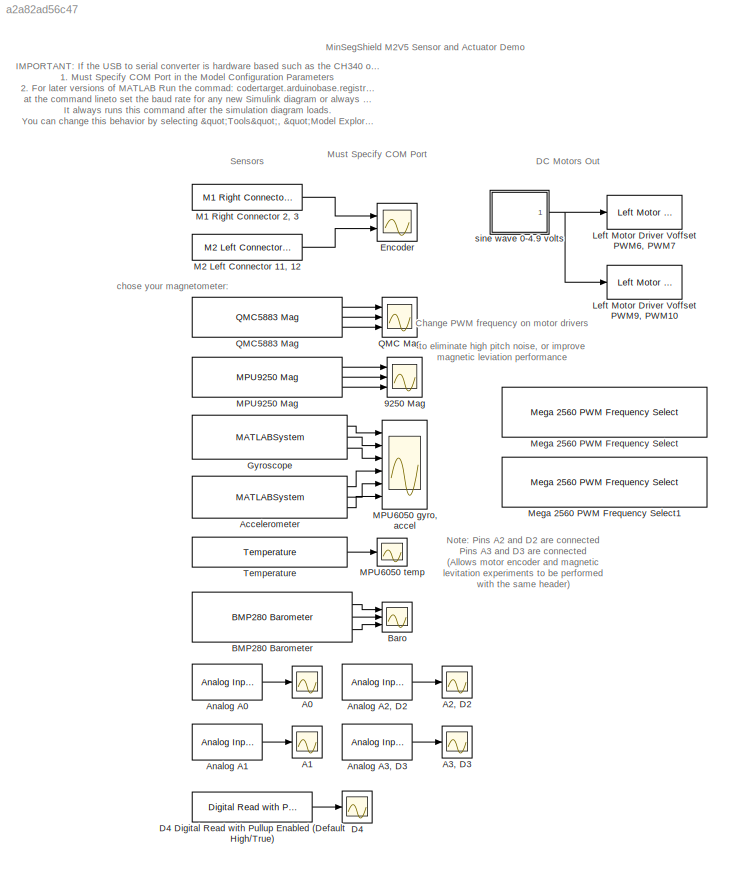
MODEL slx_a2a82ad56c47
KIND model
CONFIG AbsTol = auto
CONFIG FixedStep = auto
CONFIG MaxStep = auto
CONFIG MinStep = auto
CONFIG PostLoadFcn = try, \ncodertarget.arduinobase.registry.setBaudRate(gcs,115200)\ndisp('baud rate set to 115200 for external mode hardware serial')\nbaudrate='set_to_115200'\ncatch\ndisp('baud rate setting not needed in this version')\nend
CONFIG RelTol = 1e-3
CONFIG SampleTimeConstraint = Unconstrained
CONFIG Solver = ode45
CONFIG SolverMode = Auto
CONFIG SolverName = ode45
CONFIG StartTime = 0.0
CONFIG StopTime = 10.0
BLOCK [Scope] 9250 Mag
  DataFormat = StructureWithTime
  Floating = off
  NumInputPorts = 3
  Ports = [3]
  SampleTime = 0
  SaveName = ScopeData7
  TimeRange = 30
  YMax = 200~200~200
  YMin = -200~-200~-200
BLOCK [Scope] A0
  Floating = off
  NumInputPorts = 1
  Ports = [1]
  SaveName = ScopeData2
  TimeRange = 30
  YMax = 1100
  YMin = 0
BLOCK [Scope] A1
  Floating = off
  NumInputPorts = 1
  Ports = [1]
  SaveName = ScopeData3
BLOCK [Scope] A2, D2
  Floating = off
  NumInputPorts = 1
  Ports = [1]
  SaveName = ScopeData5
BLOCK [Scope] A3, D3
  Floating = off
  NumInputPorts = 1
  Ports = [1]
  SaveName = ScopeData4
BLOCK [MATLABSystem] Accelerometer
  MaskDisplay = disp('soMPU6050Accel');\nport_label('output',1,'xaccel');\nport_label('output',2,'yaccel');\nport_label('output',3,'zaccel');
  MaskType = soMPU6050Accel
  Ports = [0, 3]
  SimulateUsing = Code generation
  System = soMPU6050Accel
BLOCK [Reference] Analog A0  REF=arduinolib/Analog Input
  Ports = [0, 1]
  SourceBlock = arduinolib/Analog Input
  SourceType = Arduino Analog Input
  blockPlatform = arduino
  pinNumber = 0
  sampleTime = -1
BLOCK [Reference] Analog A1  REF=arduinolib/Analog Input
  Ports = [0, 1]
  SourceBlock = arduinolib/Analog Input
  SourceType = Arduino Analog Input
  blockPlatform = arduino
  pinNumber = 1
  sampleTime = -1
BLOCK [Reference] Analog A2, D2  REF=arduinolib/Analog Input
  Ports = [0, 1]
  SourceBlock = arduinolib/Analog Input
  SourceType = Arduino Analog Input
  blockPlatform = arduino
  pinNumber = 2
  sampleTime = -1
BLOCK [Reference] Analog A3, D3  REF=arduinolib/Analog Input
  Ports = [0, 1]
  SourceBlock = arduinolib/Analog Input
  SourceType = Arduino Analog Input
  blockPlatform = arduino
  pinNumber = 3
  sampleTime = -1
BLOCK [Reference] BMP280 Barometer  REF=RASPlib/BMP280 Barometer
  Commented = on
  Ports = [0, 3]
  SimulateUsing = Code generation
  SourceBlock = RASPlib/BMP280 Barometer
  SourceType = soBMP280
BLOCK [Scope] Baro
  Commented = on
  DataFormat = StructureWithTime
  Floating = off
  NumInputPorts = 3
  Ports = [3]
  SampleTime = 0
  SaveName = ScopeData6
  TimeRange = 10
  YMax = 100685~55.25~28.55
  YMin = 100663~53.25~28.42
BLOCK [Scope] D4
  Floating = off
  NumInputPorts = 1
  Ports = [1]
  SaveName = ScopeData10
  TimeRange = 30
BLOCK [Reference] D4 Digital Read with Pullup Enabled (Default High//True)  REF=RASPlib/Digital Read with Pullup Enabled
  Pin = 4
  Ports = [0, 1]
  SourceBlock = RASPlib/Digital Read with Pullup Enabled
  SourceType = soDigitalPullupRead
BLOCK [Scope] Encoder
  DataFormat = StructureWithTime
  Floating = off
  NumInputPorts = 2
  Ports = [2]
  SampleTime = 0
  TimeRange = 30
  YMax = 4000~3000
  YMin = -6000~-7000
BLOCK [MATLABSystem] Gyroscope
  DLPFmode = 0
  MaskDisplay = disp('soMPU6050Gyro');\nport_label('output',1,'xvel');\nport_label('output',2,'yvel');\nport_label('output',3,'zvel');
  MaskType = soMPU6050Gyro
  Ports = [0, 3]
  System = soMPU6050Gyro
BLOCK [Reference] Left Motor Driver Voffset PWM6, PWM7  REF=MinSegLibrary_M2V5/Left Motor Driver
Voffset PWM6, PWM7
  Ports = [1]
  SourceBlock = MinSegLibrary_M2V5/Left Motor Driver\nVoffset PWM6, PWM7
  Voffset = 0
  Vsupply = 4.9
BLOCK [Reference] Left Motor Driver Voffset PWM9, PWM10  REF=MinSegLibrary_M2V5/Left Motor Driver
Voffset PWM9, PWM10
  Ports = [1]
  SourceBlock = MinSegLibrary_M2V5/Left Motor Driver\nVoffset PWM9, PWM10
  Voffset = 0
  Vsupply = 4.9
BLOCK [Reference] M1 Right Connector 2, 3  REF=MinSegLibrary_M2V5/M1 Right Connector 2, 3
  Encoder = 0
  PinA = 2
  PinB = 3
  Ports = [0, 1]
  SourceBlock = MinSegLibrary_M2V5/M1 Right Connector 2, 3
  SourceType = Encoder_arduino
BLOCK [Reference] M2 Left Connector 11, 12  REF=MinSegLibrary_M2V5/M2 Left Connector 11, 12
  Encoder = 4
  PinA = 11
  PinB = 12
  Ports = [0, 1]
  SourceBlock = MinSegLibrary_M2V5/M2 Left Connector 11, 12
  SourceType = Encoder_arduino
BLOCK [Scope] MPU6050 gyro, accel
  DataFormat = StructureWithTime
  Floating = off
  NumInputPorts = 6
  Ports = [6]
  SampleTime = 0
  SaveName = ScopeData1
  TimeRange = 30
  YMax = 40000~40000~30000~35000~20000~40000
  YMin = -40000~-40000~-40000~-20000~-35000~-30000
BLOCK [Scope] MPU6050 temp
  DataFormat = StructureWithTime
  Floating = off
  NumInputPorts = 1
  Ports = [1]
  SampleTime = 0
  SaveName = ScopeData9
  TimeRange = 30
  YMax = 0
  YMin = -3000
BLOCK [Reference] MPU9250 Mag  REF=RASPlib/MPU9250 Mag
  Ports = [0, 3]
  SimulateUsing = Code generation
  SourceBlock = RASPlib/MPU9250 Mag
  SourceType = soMPU9250Mag
BLOCK [Reference] Mega 2560 PWM Frequency Select  REF=RASPlib/Mega 2560 PWM Frequency Select
  Commented = on
  Frequency = 32KHz
  Ports = []
  SourceBlock = RASPlib/Mega 2560 PWM Frequency Select
  Timer = 4 - pins 6, 7, 8
BLOCK [Reference] Mega 2560 PWM Frequency Select1  REF=RASPlib/Mega 2560 PWM Frequency Select
  Commented = on
  Frequency = 32KHz
  Ports = []
  SourceBlock = RASPlib/Mega 2560 PWM Frequency Select
  Timer = 2 - pins 9, 10
BLOCK [Scope] QMC Mag
  Commented = on
  DataFormat = StructureWithTime
  Floating = off
  NumInputPorts = 3
  Ports = [3]
  SampleTime = 0
  SaveName = ScopeData8
  TimeRange = 30
  YMax = 1500~1500~1500
  YMin = -1500~-1500~-1500
BLOCK [Reference] QMC5883 Mag  REF=RASPlib/QMC5883 Mag
  Commented = on
  Ports = [0, 3]
  SimulateUsing = Code generation
  SourceBlock = RASPlib/QMC5883 Mag
  SourceType = soQMC5883L
BLOCK [Reference] Temperature  REF=RASPlib/Temperature
  Ports = [0, 1]
  SimulateUsing = Code generation
  SourceBlock = RASPlib/Temperature
  SourceType = soMPU6050Temp
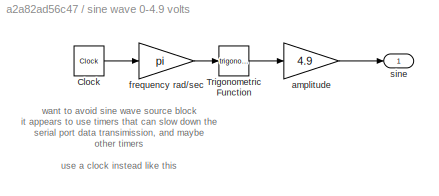
BLOCK [SubSystem] sine wave 0-4.9 volts
  Ports = [0, 1]
  RequestExecContextInheritance = off
BLOCK [Clock] sine wave 0-4.9 volts/Clock
BLOCK [Trigonometry] sine wave 0-4.9 volts/Trigonometric Function
  Ports = [1, 1]
BLOCK [Gain] sine wave 0-4.9 volts/amplitude
  Gain = 4.9
  OutDataTypeStr = Inherit: Inherit via internal rule
  ParamDataTypeStr = Inherit: Inherit via internal rule
  SaturateOnIntegerOverflow = off
BLOCK [Gain] sine wave 0-4.9 volts/frequency rad//sec
  Gain = pi
  OutDataTypeStr = Inherit: Inherit via internal rule
  ParamDataTypeStr = Inherit: Inherit via internal rule
  SaturateOnIntegerOverflow = off
BLOCK [Outport] sine wave 0-4.9 volts/sine
  IconDisplay = Port number
ANNOTATION (root): IMPORTANT : If the USB to serial converter is hardware based such as the CH340 or the PL2303 you must: 1. Must Specify COM Port in the Model Configuration Parameters 2. For later versions of MATLAB Run the commad: codertarget.arduinobase.registry.setBaudRate(gcs,115200) at the command lineto set the baud rate for any new Simulink diagram or always use this file to start new projects. It always run...<+146ch>
ANNOTATION (root): chose your magnetometer:
ANNOTATION (root): Change PWM frequency on motor drivers to eliminate high pitch noise, or improve magnetic leviation performance
ANNOTATION (root): DC Motors Out
ANNOTATION (root): MinSegShield M2V5 Sensor and Actuator Demo
ANNOTATION (root): Must Specify COM Port
ANNOTATION (root): Note: Pins A2 and D2 are connected Pins A3 and D3 are connected (Allows motor encoder and magnetic levitation experiments to be performed with the same header)
ANNOTATION (root): Sensors
ANNOTATION sine wave 0-4.9 volts: want to avoid sine wave source block it appears to use timers that can slow down the serial port data transimission, and maybe other timers use a clock instead like this
LINE Accelerometer:1 -> MPU6050 gyro, accel:4
LINE Accelerometer:2 -> MPU6050 gyro, accel:5
LINE Accelerometer:3 -> MPU6050 gyro, accel:6
LINE Analog A0:1 -> A0:1
LINE Analog A1:1 -> A1:1
LINE Analog A2, D2:1 -> A2, D2:1
LINE Analog A3, D3:1 -> A3, D3:1
LINE BMP280 Barometer:1 -> Baro:1
LINE BMP280 Barometer:2 -> Baro:2
LINE BMP280 Barometer:3 -> Baro:3
LINE D4 Digital Read with Pullup Enabled (Default High//True):1 -> D4:1
LINE Gyroscope:1 -> MPU6050 gyro, accel:1
LINE Gyroscope:2 -> MPU6050 gyro, accel:2
LINE Gyroscope:3 -> MPU6050 gyro, accel:3
LINE M1 Right Connector 2, 3:1 -> Encoder:1
LINE M2 Left Connector 11, 12:1 -> Encoder:2
LINE MPU9250 Mag:1 -> 9250 Mag:1
LINE MPU9250 Mag:2 -> 9250 Mag:2
LINE MPU9250 Mag:3 -> 9250 Mag:3
LINE QMC5883 Mag:1 -> QMC Mag:1
LINE QMC5883 Mag:2 -> QMC Mag:2
LINE QMC5883 Mag:3 -> QMC Mag:3
LINE Temperature:1 -> MPU6050 temp:1
LINE sine wave 0-4.9 volts/Clock:1 -> sine wave 0-4.9 volts/frequency rad//sec:1
LINE sine wave 0-4.9 volts/Trigonometric Function:1 -> sine wave 0-4.9 volts/amplitude:1
LINE sine wave 0-4.9 volts/amplitude:1 -> sine wave 0-4.9 volts/sine:1
LINE sine wave 0-4.9 volts/frequency rad//sec:1 -> sine wave 0-4.9 volts/Trigonometric Function:1
NET sine wave 0-4.9 volts:1 -> Left Motor Driver Voffset PWM6, PWM7:1, Left Motor Driver Voffset PWM9, PWM10:1
note: NET lines group one-source signal fan-out (src -> all destinations, sorted); 1:1 wires keep LINE
